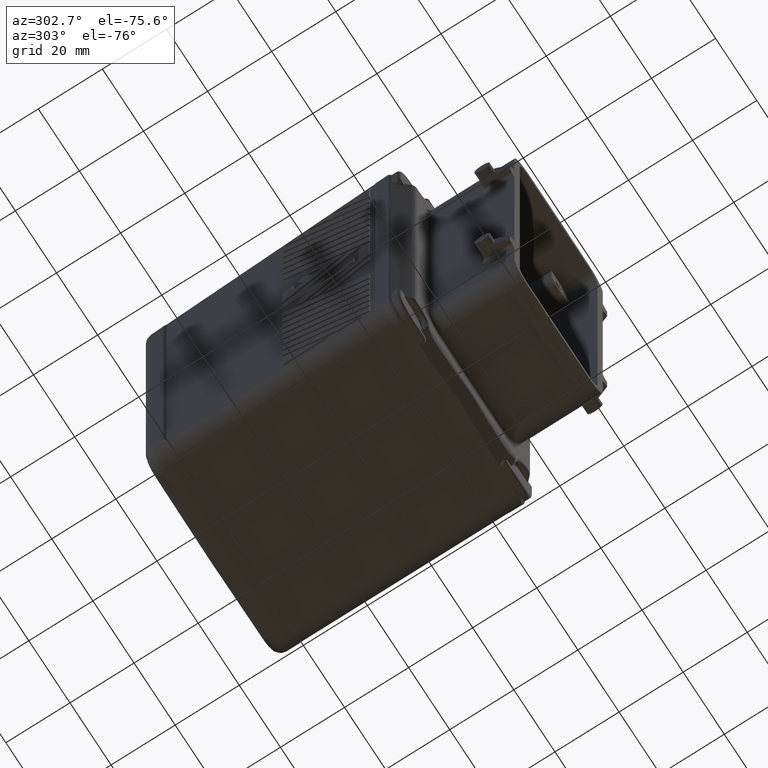
[diagram: clean part render]
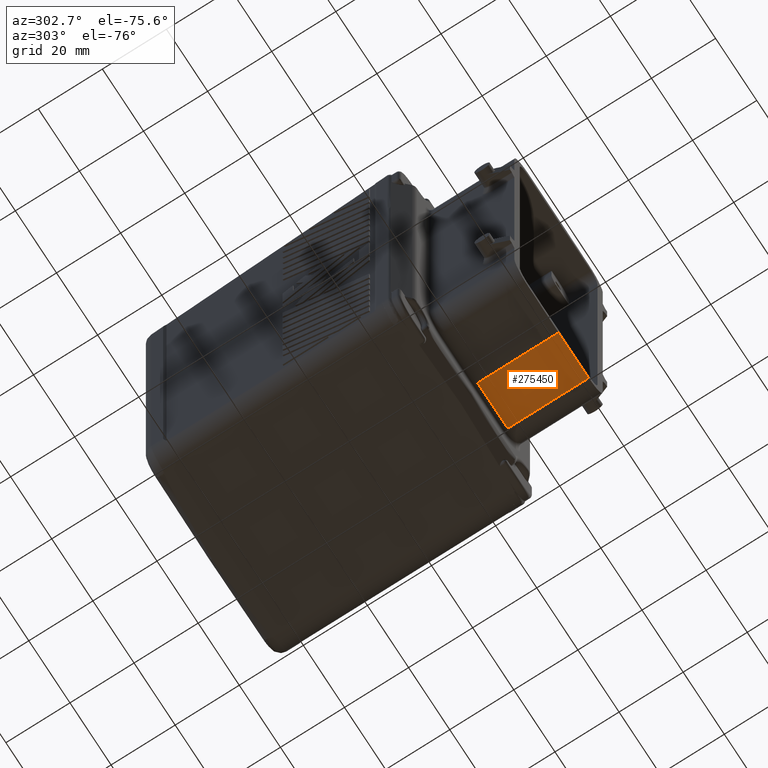
[diagram: same view with one face highlighted and labeled with its STEP entity id]
A machine part, auxiliary view. The second image highlights one B-rep face of the part: STEP entity #275450.
In plain terms, the highlighted planar face has unit normal (0.0262, 0, -0.9997).
Its self-contained STEP definition (entity closure, byte-faithful):
#186400=CARTESIAN_POINT('',(61.3036735031013,19.780754524589,
-63.5682334685841));
#186410=VERTEX_POINT('',#186400);
#186440=CARTESIAN_POINT('',(0.,19.780754524589,-65.1735266548395));
#186450=DIRECTION('',(0.999657324975557,3.46944695195361E-18,
0.0261769483078759));
#186460=VECTOR('',#186450,1.);
#186470=LINE('',#186440,#186460);
#186480=CARTESIAN_POINT('',(47.0331778225539,19.780754524589,
-63.9419195492284));
#186490=VERTEX_POINT('',#186480);
#186500=EDGE_CURVE('',#186490,#186410,#186470,.T.);
#274800=CARTESIAN_POINT('',(61.3036735031013,20.0000000000222,
-63.5682334685841));
#274810=DIRECTION('',(-2.40356057059527E-31,1.,1.62312834311911E-32));
#274820=VECTOR('',#274810,1.);
#274830=LINE('',#274800,#274820);
#274840=CARTESIAN_POINT('',(61.3036735031014,45.036608000024,
-63.568233468584));
#274850=VERTEX_POINT('',#274840);
#274860=EDGE_CURVE('',#186410,#274850,#274830,.T.);
#275140=CARTESIAN_POINT('',(-0.0599999999851661,19.7156880011933,
-65.1750978101333));
#275150=DIRECTION('',(0.0261769483078759,2.25175094568767E-32,
-0.999657324975557));
#275160=DIRECTION('',(-0.999657324975557,0.,-0.0261769483078759));
#275170=AXIS2_PLACEMENT_3D('',#275140,#275150,#275160);
#275180=PLANE('',#275170);
#275190=CARTESIAN_POINT('',(46.6227085308365,20.0000000000222,
-63.9526680659078));
#275200=DIRECTION('',(-2.40356057059527E-31,1.,1.62312834311911E-32));
#275210=VECTOR('',#275200,1.);
#275220=LINE('',#275190,#275210);
#275230=CARTESIAN_POINT('',(46.6227085308365,19.7826497780822,
-63.9526680659078));
#275240=VERTEX_POINT('',#275230);
#275250=CARTESIAN_POINT('',(46.6227085308366,45.036608000024,
-63.9526680659078));
#275260=VERTEX_POINT('',#275250);
#275270=EDGE_CURVE('',#275240,#275260,#275220,.T.);
#275280=ORIENTED_EDGE('',*,*,#275270,.T.);
#275290=CARTESIAN_POINT('',(-0.0599999999851661,19.9981971240097,
-65.1750978101333));
#275300=DIRECTION('',(-0.999646676442327,0.00461565309198202,
-0.0261766694662199));
#275310=VECTOR('',#275300,1.);
#275320=LINE('',#275290,#275310);
#275330=EDGE_CURVE('',#186490,#275240,#275320,.T.);
#275340=ORIENTED_EDGE('',*,*,#275330,.T.);
#275350=ORIENTED_EDGE('',*,*,#186500,.F.);
#275360=ORIENTED_EDGE('',*,*,#274860,.F.);
#275370=CARTESIAN_POINT('',(-0.0992654224575529,45.036608000024,
-65.1761260114065));
#275380=DIRECTION('',(0.999657324975557,0.,0.0261769483078759));
#275390=VECTOR('',#275380,1.);
#275400=LINE('',#275370,#275390);
#275410=EDGE_CURVE('',#275260,#274850,#275400,.T.);
#275420=ORIENTED_EDGE('',*,*,#275410,.T.);
#275430=EDGE_LOOP('',(#275420,#275360,#275350,#275340,#275280));
#275440=FACE_OUTER_BOUND('',#275430,.T.);
#275450=ADVANCED_FACE('',(#275440),#275180,.T.);